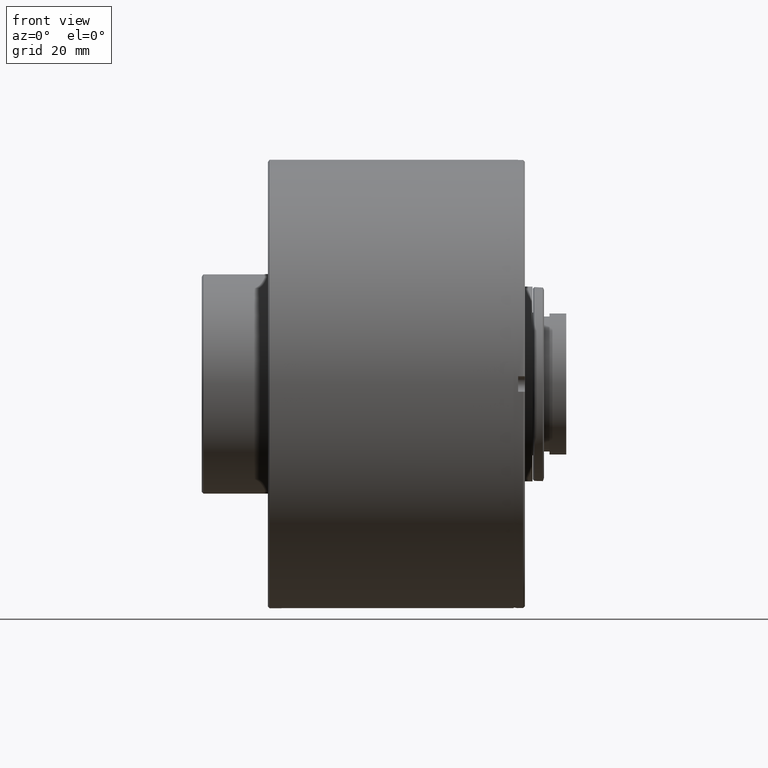
[diagram: clean part render]
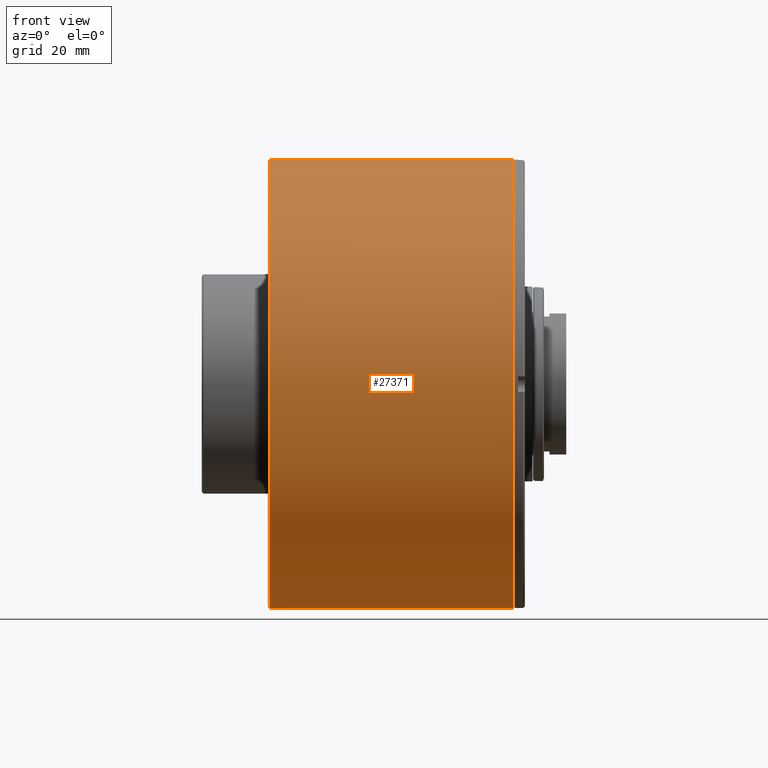
[diagram: same view with one face highlighted and labeled with its STEP entity id]
A machine part, front view. The second image highlights one B-rep face of the part: STEP entity #27371.
In plain terms, the highlighted cylindrical surface (bore or boss wall) has radius 40.3 mm, axis along (-1, -0, -0).
Its self-contained STEP definition (entity closure, byte-faithful):
#337 = FACE_OUTER_BOUND ( 'NONE', #11951, .T. ) ;
#346 = EDGE_CURVE ( 'NONE', #20775, #45390, #18269, .T. ) ;
#623 = EDGE_CURVE ( 'NONE', #43349, #3234, #12291, .T. ) ;
#1934 = CARTESIAN_POINT ( 'NONE',  ( 225.3468467918906128, 31.35578796274750957, 25.31638242571970210 ) ) ;
#2406 = AXIS2_PLACEMENT_3D ( 'NONE', #38744, #30242, #46016 ) ;
#2828 = EDGE_CURVE ( 'NONE', #38230, #38230, #17162, .T. ) ;
#3234 = VERTEX_POINT ( 'NONE', #6854 ) ;
#3427 = CARTESIAN_POINT ( 'NONE',  ( 225.3208642838983451, 30.54782109303414472, 26.28536905710028648 ) ) ;
#3736 = DIRECTION ( 'NONE',  ( -1.000000000000000000, -0.000000000000000000, -0.000000000000000000 ) ) ;
#4618 = EDGE_CURVE ( 'NONE', #43680, #20775, #35566, .T. ) ;
#5115 = DIRECTION ( 'NONE',  ( 0.000000000000000000, 0.000000000000000000, 1.000000000000000000 ) ) ;
#6019 = CARTESIAN_POINT ( 'NONE',  ( 184.1208642838983565, 31.81438044522762709, 24.73732396372543363 ) ) ;
#6134 = EDGE_CURVE ( 'NONE', #3234, #43680, #27203, .T. ) ;
#6342 = CARTESIAN_POINT ( 'NONE',  ( 226.3208642838983735, 29.88601761616803287, 27.03545729308237000 ) ) ;
#6854 = CARTESIAN_POINT ( 'NONE',  ( 226.3208642838983735, 31.81438044522762354, 24.73732396372543008 ) ) ;
#7030 = ORIENTED_EDGE ( 'NONE', *, *, #6134, .T. ) ;
#8291 = CARTESIAN_POINT ( 'NONE',  ( 228.3208642838983735, -1.103418725978676999E-13, -1.249004384131938183E-13 ) ) ;
#9470 = CARTESIAN_POINT ( 'NONE',  ( 225.3208642838983451, 31.19060870272067021, 25.51932461398131480 ) ) ;
#9957 = B_SPLINE_CURVE_WITH_KNOTS ( 'NONE', 3,
 ( #6342, #24837, #21193, #47659, #36008, #36734, #32117, #3427 ),
 .UNSPECIFIED., .F., .F.,
 ( 4, 2, 2, 4 ),
 ( 0.000000000000000000, 0.0003905952037927164092, 0.0007811904075854328184, 0.001562380815170796248 ),
 .UNSPECIFIED. ) ;
#11298 = ORIENTED_EDGE ( 'NONE', *, *, #22130, .T. ) ;
#11951 = EDGE_LOOP ( 'NONE', ( #29533 ) ) ;
#11955 = CARTESIAN_POINT ( 'NONE',  ( 184.4208642838982826, -1.103418725978676999E-13, 40.29999999999987637 ) ) ;
#12291 = B_SPLINE_CURVE_WITH_KNOTS ( 'NONE', 3,
 ( #9470, #12401, #1934, #15819, #16766, #24076, #30639, #23365 ),
 .UNSPECIFIED., .F., .F.,
 ( 4, 2, 2, 4 ),
 ( 7.757919228897728493E-18, 0.0003905951231566086464, 0.0007811902463132095950, 0.001562380492626411384 ),
 .UNSPECIFIED. ) ;
#12401 = CARTESIAN_POINT ( 'NONE',  ( 225.3208642838983451, 31.27424221631884649, 25.41710481637564101 ) ) ;
#13515 = CARTESIAN_POINT ( 'NONE',  ( 226.3208642838983735, 29.88601761616803287, 27.03545729308237000 ) ) ;
#13856 = VECTOR ( 'NONE', #14149, 1000.000000000000000 ) ;
#13951 = VECTOR ( 'NONE', #46369, 1000.000000000000000 ) ;
#14149 = DIRECTION ( 'NONE',  ( -1.000000000000000000, -0.000000000000000000, -0.000000000000000000 ) ) ;
#14463 = DIRECTION ( 'NONE',  ( -1.000000000000000000, -0.000000000000000000, -0.000000000000000000 ) ) ;
#15819 = CARTESIAN_POINT ( 'NONE',  ( 225.4471187467221114, 31.50733220206767271, 25.12752823893787024 ) ) ;
#16766 = CARTESIAN_POINT ( 'NONE',  ( 225.5213170126303339, 31.57630978024684865, 25.04067043619809141 ) ) ;
#17162 = CIRCLE ( 'NONE', #2406, 40.30000000000000426 ) ;
#18269 = LINE ( 'NONE', #36508, #13856 ) ;
#18566 = DIRECTION ( 'NONE',  ( 0.000000000000000000, 0.000000000000000000, 1.000000000000000000 ) ) ;
#20775 = VERTEX_POINT ( 'NONE', #26562 ) ;
#21193 = CARTESIAN_POINT ( 'NONE',  ( 226.0591946598289326, 29.90348237152155519, 27.01618514510695945 ) ) ;
#21778 = CARTESIAN_POINT ( 'NONE',  ( 225.3208642838983451, -1.103418725978676999E-13, -1.249004384131938183E-13 ) ) ;
#22130 = EDGE_CURVE ( 'NONE', #45390, #22886, #9957, .T. ) ;
#22886 = VERTEX_POINT ( 'NONE', #34225 ) ;
#23365 = CARTESIAN_POINT ( 'NONE',  ( 226.3208642838983735, 31.81438044522762354, 24.73732396372543008 ) ) ;
#24076 = CARTESIAN_POINT ( 'NONE',  ( 225.7978110966597569, 31.74782487056037539, 24.82336957219667184 ) ) ;
#24837 = CARTESIAN_POINT ( 'NONE',  ( 226.1887905214282739, 29.88601761616803287, 27.03545729308237355 ) ) ;
#26229 = ORIENTED_EDGE ( 'NONE', *, *, #346, .T. ) ;
#26562 = CARTESIAN_POINT ( 'NONE',  ( 228.3208642838983735, 29.88601761616803287, 27.03545729308236645 ) ) ;
#27203 = LINE ( 'NONE', #6019, #13951 ) ;
#27371 = ADVANCED_FACE ( 'NONE', ( #33643, #337 ), #37033, .T. ) ;
#28025 = AXIS2_PLACEMENT_3D ( 'NONE', #29983, #3736, #18566 ) ;
#28224 = ORIENTED_EDGE ( 'NONE', *, *, #4618, .T. ) ;
#29375 = ORIENTED_EDGE ( 'NONE', *, *, #623, .T. ) ;
#29533 = ORIENTED_EDGE ( 'NONE', *, *, #2828, .T. ) ;
#29983 = CARTESIAN_POINT ( 'NONE',  ( 184.1208642838983565, -1.103418725978676999E-13, -1.249004384131938183E-13 ) ) ;
#30242 = DIRECTION ( 'NONE',  ( 1.000000000000000000, 0.000000000000000000, 0.000000000000000000 ) ) ;
#30639 = CARTESIAN_POINT ( 'NONE',  ( 226.0567158204517284, 31.81438044522763420, 24.73732396372543363 ) ) ;
#32117 = CARTESIAN_POINT ( 'NONE',  ( 225.3208642838983451, 30.37553403480297831, 26.48559429343072935 ) ) ;
#33161 = EDGE_CURVE ( 'NONE', #22886, #43349, #46709, .T. ) ;
#33643 = FACE_OUTER_BOUND ( 'NONE', #39484, .T. ) ;
#34225 = CARTESIAN_POINT ( 'NONE',  ( 225.3208642838983451, 30.54782109303414472, 26.28536905710028648 ) ) ;
#34553 = DIRECTION ( 'NONE',  ( -1.000000000000000000, -0.000000000000000000, -0.000000000000000000 ) ) ;
#34811 = AXIS2_PLACEMENT_3D ( 'NONE', #8291, #34553, #5115 ) ;
#35566 = CIRCLE ( 'NONE', #34811, 40.30000000000000426 ) ;
#36008 = CARTESIAN_POINT ( 'NONE',  ( 225.7062136812716062, 30.02031298430877726, 26.88641499256074496 ) ) ;
#36508 = CARTESIAN_POINT ( 'NONE',  ( 184.1208642838983565, 29.88601761616803287, 27.03545729308236645 ) ) ;
#36734 = CARTESIAN_POINT ( 'NONE',  ( 225.4295275748437746, 30.20439763200413452, 26.67992456885956187 ) ) ;
#37033 = CYLINDRICAL_SURFACE ( 'NONE', #28025, 40.30000000000000426 ) ;
#37738 = CARTESIAN_POINT ( 'NONE',  ( 225.3208642838983451, 31.19060870272067021, 25.51932461398131480 ) ) ;
#38230 = VERTEX_POINT ( 'NONE', #11955 ) ;
#38335 = ORIENTED_EDGE ( 'NONE', *, *, #33161, .T. ) ;
#38744 = CARTESIAN_POINT ( 'NONE',  ( 184.4208642838982826, -1.103418725978676999E-13, -1.249004384131938183E-13 ) ) ;
#39484 = EDGE_LOOP ( 'NONE', ( #7030, #28224, #26229, #11298, #38335, #29375 ) ) ;
#43349 = VERTEX_POINT ( 'NONE', #37738 ) ;
#43680 = VERTEX_POINT ( 'NONE', #47168 ) ;
#45390 = VERTEX_POINT ( 'NONE', #13515 ) ;
#46016 = DIRECTION ( 'NONE',  ( 0.000000000000000000, 0.000000000000000000, 1.000000000000000000 ) ) ;
#46369 = DIRECTION ( 'NONE',  ( 1.000000000000000000, 0.000000000000000000, 0.000000000000000000 ) ) ;
#46709 = CIRCLE ( 'NONE', #47481, 40.30000000000000426 ) ;
#47029 = DIRECTION ( 'NONE',  ( 0.000000000000000000, 0.000000000000000000, 1.000000000000000000 ) ) ;
#47168 = CARTESIAN_POINT ( 'NONE',  ( 228.3208642838983735, 31.81438044522762709, 24.73732396372543363 ) ) ;
#47481 = AXIS2_PLACEMENT_3D ( 'NONE', #21778, #14463, #47029 ) ;
#47659 = CARTESIAN_POINT ( 'NONE',  ( 225.8170959394378770, 29.97066464282380949, 26.94163652427204525 ) ) ;